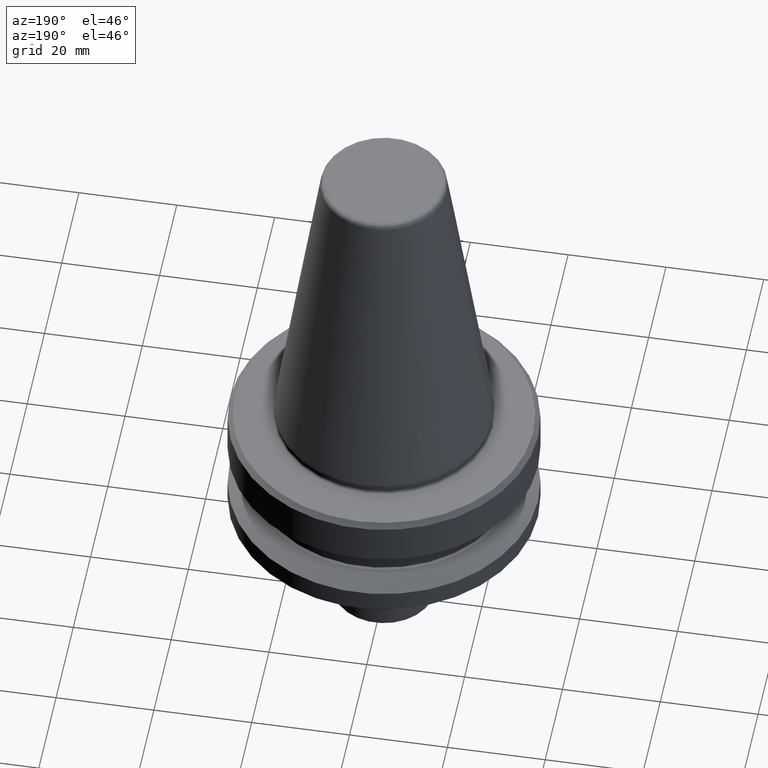
[diagram: clean part render]
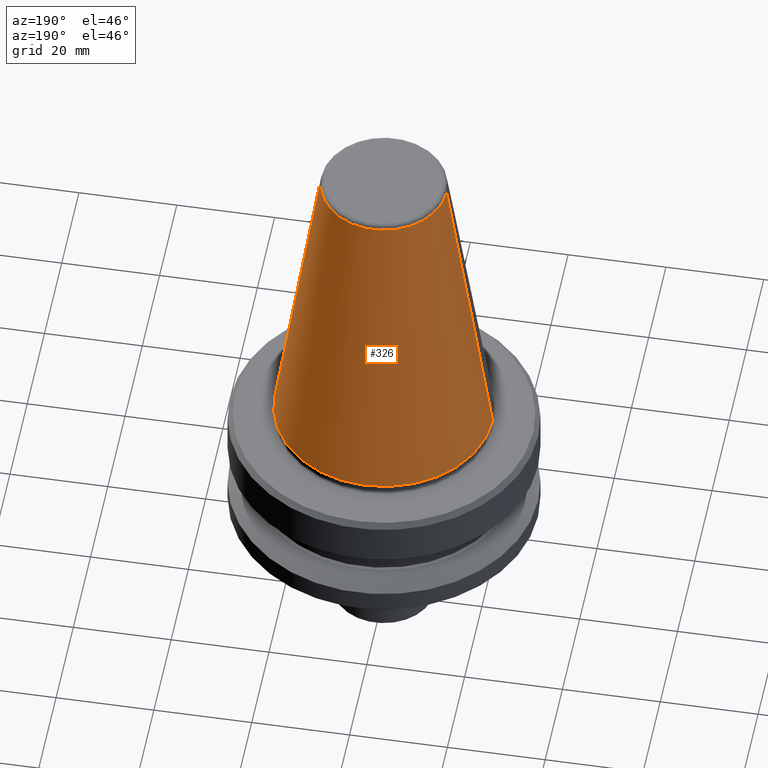
[diagram: same view with one face highlighted and labeled with its STEP entity id]
A machine part, auxiliary view. The second image highlights one B-rep face of the part: STEP entity #326.
In plain terms, the highlighted conical surface has half-angle 8.297 deg.
Its self-contained STEP definition (entity closure, byte-faithful):
#130 = CARTESIAN_POINT ( 'NONE',  ( -12.81220206925736900, 0.0000000000000000000, -0.8556918111122247000 ) ) ;
#157 = VERTEX_POINT ( 'NONE', #708 ) ;
#207 = CARTESIAN_POINT ( 'NONE',  ( -12.81220206925736900, 0.0000000000000000000, -0.8556918111122247000 ) ) ;
#225 = AXIS2_PLACEMENT_3D ( 'NONE', #623, #302, #787 ) ;
#267 = EDGE_CURVE ( 'NONE', #527, #713, #698, .T. ) ;
#302 = DIRECTION ( 'NONE',  ( -0.0000000000000000000, -0.0000000000000000000, 1.000000000000000000 ) ) ;
#326 = ADVANCED_FACE ( 'NONE', ( #411 ), #633, .T. ) ;
#332 = CARTESIAN_POINT ( 'NONE',  ( 0.0000000000000000000, 0.0000000000000000000, -65.40000000000057400 ) ) ;
#375 = EDGE_CURVE ( 'NONE', #157, #590, #884, .T. ) ;
#393 = ORIENTED_EDGE ( 'NONE', *, *, #375, .T. ) ;
#408 = VECTOR ( 'NONE', #751, 1000.000000000000000 ) ;
#411 = FACE_OUTER_BOUND ( 'NONE', #525, .T. ) ;
#453 = CARTESIAN_POINT ( 'NONE',  ( 12.81220206925736900, 2.145409868259749100E-015, -0.8556918111122247000 ) ) ;
#525 = EDGE_LOOP ( 'NONE', ( #761, #629, #393, #900 ) ) ;
#527 = VERTEX_POINT ( 'NONE', #453 ) ;
#540 = LINE ( 'NONE', #832, #942 ) ;
#567 = CARTESIAN_POINT ( 'NONE',  ( 0.0000000000000000000, 0.0000000000000000000, -0.8556918111122247000 ) ) ;
#590 = VERTEX_POINT ( 'NONE', #983 ) ;
#623 = CARTESIAN_POINT ( 'NONE',  ( 0.0000000000000000000, 0.0000000000000000000, -0.8556918111122247000 ) ) ;
#629 = ORIENTED_EDGE ( 'NONE', *, *, #924, .T. ) ;
#633 = CONICAL_SURFACE ( 'NONE', #654, 12.81220206925736900, 0.1448138077623198300 ) ;
#654 = AXIS2_PLACEMENT_3D ( 'NONE', #567, #963, #885 ) ;
#698 = CIRCLE ( 'NONE', #225, 12.81220206925736900 ) ;
#708 = CARTESIAN_POINT ( 'NONE',  ( 22.22499999999993700, 0.0000000000000000000, -65.40000000000057400 ) ) ;
#713 = VERTEX_POINT ( 'NONE', #130 ) ;
#751 = DIRECTION ( 'NONE',  ( -0.1443081888881795900, 0.0000000000000000000, -0.9895327920891826600 ) ) ;
#761 = ORIENTED_EDGE ( 'NONE', *, *, #267, .F. ) ;
#764 = EDGE_CURVE ( 'NONE', #713, #590, #826, .T. ) ;
#787 = DIRECTION ( 'NONE',  ( 1.000000000000000000, 0.0000000000000000000, 0.0000000000000000000 ) ) ;
#826 = LINE ( 'NONE', #207, #408 ) ;
#832 = CARTESIAN_POINT ( 'NONE',  ( 12.81220206925736900, 1.569042225414513200E-015, -0.8556918111122247000 ) ) ;
#866 = AXIS2_PLACEMENT_3D ( 'NONE', #332, #914, #874 ) ;
#874 = DIRECTION ( 'NONE',  ( 1.000000000000000000, 0.0000000000000000000, 0.0000000000000000000 ) ) ;
#884 = CIRCLE ( 'NONE', #866, 22.22499999999993700 ) ;
#885 = DIRECTION ( 'NONE',  ( -1.000000000000000000, 0.0000000000000000000, 0.0000000000000000000 ) ) ;
#900 = ORIENTED_EDGE ( 'NONE', *, *, #764, .F. ) ;
#914 = DIRECTION ( 'NONE',  ( -0.0000000000000000000, -0.0000000000000000000, 1.000000000000000000 ) ) ;
#924 = EDGE_CURVE ( 'NONE', #527, #157, #540, .T. ) ;
#942 = VECTOR ( 'NONE', #990, 1000.000000000000000 ) ;
#963 = DIRECTION ( 'NONE',  ( 0.0000000000000000000, 0.0000000000000000000, -1.000000000000000000 ) ) ;
#983 = CARTESIAN_POINT ( 'NONE',  ( -22.22499999999993700, 2.721777511104985000E-015, -65.40000000000057400 ) ) ;
#990 = DIRECTION ( 'NONE',  ( 0.1443081888881795900, 1.767265616126607700E-017, -0.9895327920891826600 ) ) ;